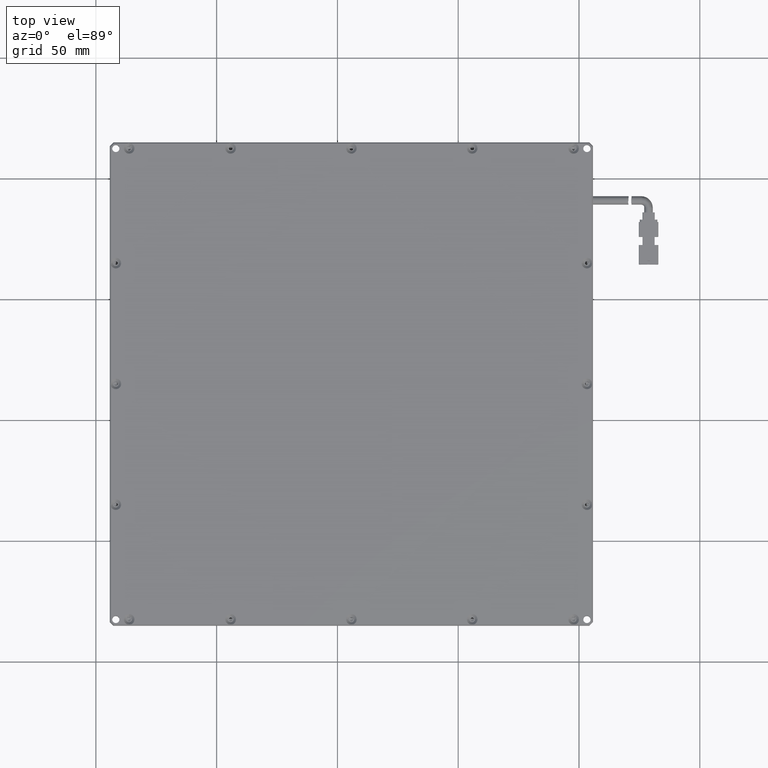
[diagram: clean part render]
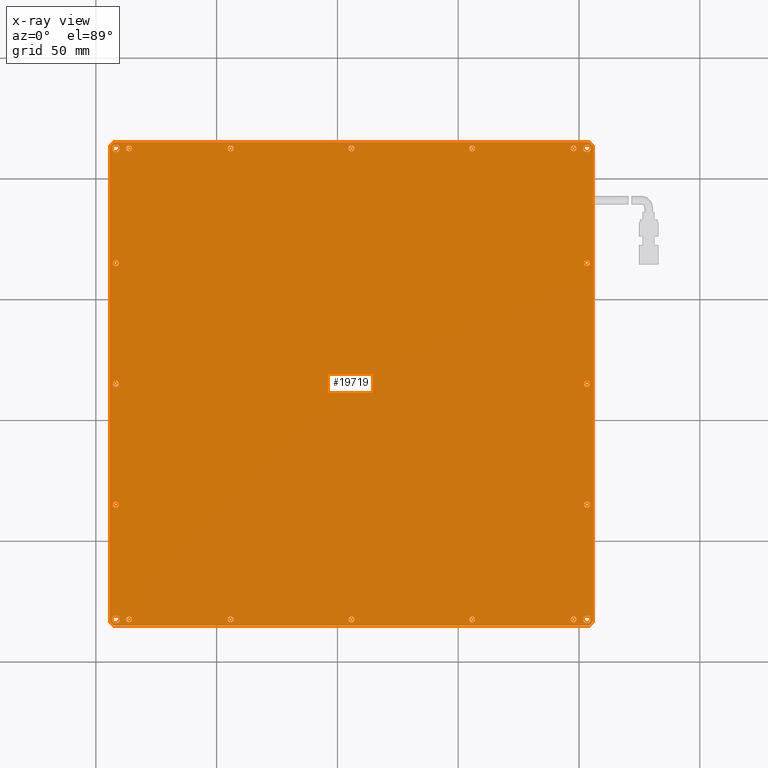
[diagram: x-ray — body ghosted, one internal face saturated and labeled with its STEP entity id]
A machine part, top view, then the same camera in x-ray: the body is ghosted and one INTERNAL B-rep face — a face not visible from any outside direction — is saturated and labeled: STEP entity #19719.
In plain terms, the highlighted planar face has unit normal (0, 0, -1).
Its self-contained STEP definition (entity closure, byte-faithful):
#57 = CARTESIAN_POINT ( 'NONE',  ( -140.0689553990610500, 112.4508215962441300, 4.499999999999999100 ) ) ;
#104 = VERTEX_POINT ( 'NONE', #4109 ) ;
#123 = EDGE_CURVE ( 'NONE', #12654, #9370, #24838, .T. ) ;
#216 = ORIENTED_EDGE ( 'NONE', *, *, #2079, .T. ) ;
#280 = ORIENTED_EDGE ( 'NONE', *, *, #4051, .T. ) ;
#282 = CIRCLE ( 'NONE', #30334, 1.200000000000006600 ) ;
#307 = ORIENTED_EDGE ( 'NONE', *, *, #10724, .T. ) ;
#379 = VERTEX_POINT ( 'NONE', #13466 ) ;
#381 = ORIENTED_EDGE ( 'NONE', *, *, #20406, .T. ) ;
#448 = VERTEX_POINT ( 'NONE', #17241 ) ;
#503 = AXIS2_PLACEMENT_3D ( 'NONE', #15626, #912, #18079 ) ;
#566 = AXIS2_PLACEMENT_3D ( 'NONE', #4054, #21210, #6492 ) ;
#837 = CARTESIAN_POINT ( 'NONE',  ( 53.28104460093896200, 112.4508215962441300, 4.499999999999999100 ) ) ;
#872 = EDGE_CURVE ( 'NONE', #5010, #25170, #13990, .T. ) ;
#912 = DIRECTION ( 'NONE',  ( -0.0000000000000000000, -0.0000000000000000000, 1.000000000000000000 ) ) ;
#938 = FACE_OUTER_BOUND ( 'NONE', #23802, .T. ) ;
#978 = CARTESIAN_POINT ( 'NONE',  ( 5.781044600938978200, -82.54917840375587400, 4.499999999999999100 ) ) ;
#1053 = ORIENTED_EDGE ( 'NONE', *, *, #123, .T. ) ;
#1138 = VERTEX_POINT ( 'NONE', #19961 ) ;
#1148 = CARTESIAN_POINT ( 'NONE',  ( -144.2189553990610300, -85.04917840375587400, 4.499999999999999100 ) ) ;
#1197 = DIRECTION ( 'NONE',  ( -1.000000000000000000, 0.0000000000000000000, -0.0000000000000000000 ) ) ;
#1214 = CIRCLE ( 'NONE', #8666, 1.199999999999978900 ) ;
#1265 = CIRCLE ( 'NONE', #19651, 1.200000000000006600 ) ;
#1272 = DIRECTION ( 'NONE',  ( 1.000000000000000000, 0.0000000000000000000, 0.0000000000000000000 ) ) ;
#1298 = ORIENTED_EDGE ( 'NONE', *, *, #24727, .T. ) ;
#1335 = EDGE_CURVE ( 'NONE', #21564, #2376, #3201, .T. ) ;
#1419 = CIRCLE ( 'NONE', #566, 1.200000000000006600 ) ;
#1420 = AXIS2_PLACEMENT_3D ( 'NONE', #8315, #25568, #10808 ) ;
#1451 = DIRECTION ( 'NONE',  ( -0.0000000000000000000, -0.0000000000000000000, 1.000000000000000000 ) ) ;
#1597 = EDGE_CURVE ( 'NONE', #31005, #379, #29025, .T. ) ;
#1669 = CARTESIAN_POINT ( 'NONE',  ( -142.7189553990610300, -85.04917840375587400, 4.499999999999999100 ) ) ;
#1733 = FACE_BOUND ( 'NONE', #14755, .T. ) ;
#1734 = CARTESIAN_POINT ( 'NONE',  ( -95.41895539906103400, 112.4508215962441300, 4.499999999999999100 ) ) ;
#1894 = CIRCLE ( 'NONE', #31878, 1.199999999999992600 ) ;
#1902 = VERTEX_POINT ( 'NONE', #57 ) ;
#1925 = AXIS2_PLACEMENT_3D ( 'NONE', #21286, #6551, #23750 ) ;
#1983 = AXIS2_PLACEMENT_3D ( 'NONE', #5351, #22607, #7840 ) ;
#2079 = EDGE_CURVE ( 'NONE', #16360, #448, #14971, .T. ) ;
#2368 = CARTESIAN_POINT ( 'NONE',  ( 5.781044600938978200, -82.54917840375587400, 4.499999999999999100 ) ) ;
#2376 = VERTEX_POINT ( 'NONE', #1669 ) ;
#2396 = LINE ( 'NONE', #14002, #27808 ) ;
#2439 = CARTESIAN_POINT ( 'NONE',  ( -44.21895539906103800, -82.54917840375587400, 4.499999999999999100 ) ) ;
#2511 = FACE_BOUND ( 'NONE', #16662, .T. ) ;
#2763 = VERTEX_POINT ( 'NONE', #19489 ) ;
#2770 = VERTEX_POINT ( 'NONE', #7240 ) ;
#2809 = CIRCLE ( 'NONE', #13114, 1.200000000000006600 ) ;
#2996 = EDGE_CURVE ( 'NONE', #9473, #14834, #1265, .T. ) ;
#3201 = LINE ( 'NONE', #1148, #9767 ) ;
#3269 = FACE_BOUND ( 'NONE', #19638, .T. ) ;
#3333 = DIRECTION ( 'NONE',  ( 1.000000000000000000, 0.0000000000000000000, 0.0000000000000000000 ) ) ;
#3343 = CARTESIAN_POINT ( 'NONE',  ( 53.28104460093896200, 112.4508215962441300, 4.499999999999999100 ) ) ;
#3453 = CARTESIAN_POINT ( 'NONE',  ( 54.28104460093896900, 114.9508215962441300, 4.499999999999999100 ) ) ;
#3471 = DIRECTION ( 'NONE',  ( 1.000000000000000000, 0.0000000000000000000, 0.0000000000000000000 ) ) ;
#3502 = CARTESIAN_POINT ( 'NONE',  ( 53.28104460093896200, 14.95082159624412700, 4.499999999999999100 ) ) ;
#3541 = EDGE_CURVE ( 'NONE', #9861, #28175, #5853, .T. ) ;
#3789 = EDGE_CURVE ( 'NONE', #28175, #21564, #2396, .T. ) ;
#3848 = CARTESIAN_POINT ( 'NONE',  ( 51.63104460093897800, -82.54917840375587400, 4.499999999999999100 ) ) ;
#4051 = EDGE_CURVE ( 'NONE', #17112, #6966, #24639, .T. ) ;
#4054 = CARTESIAN_POINT ( 'NONE',  ( 47.78104460093896200, -82.54917840375587400, 4.499999999999999100 ) ) ;
#4109 = CARTESIAN_POINT ( 'NONE',  ( -135.0189553990610400, -82.54917840375587400, 4.499999999999999100 ) ) ;
#4168 = EDGE_CURVE ( 'NONE', #22827, #1138, #16159, .T. ) ;
#4203 = AXIS2_PLACEMENT_3D ( 'NONE', #3343, #20498, #5790 ) ;
#4338 = CARTESIAN_POINT ( 'NONE',  ( -142.9189553990610500, -35.04917840375588900, 4.499999999999999100 ) ) ;
#4347 = CARTESIAN_POINT ( 'NONE',  ( -44.21895539906103800, 112.4508215962441300, 4.499999999999999100 ) ) ;
#4389 = ORIENTED_EDGE ( 'NONE', *, *, #7710, .T. ) ;
#4417 = AXIS2_PLACEMENT_3D ( 'NONE', #26599, #11801, #29149 ) ;
#4453 = DIRECTION ( 'NONE',  ( -0.0000000000000000000, -0.0000000000000000000, 1.000000000000000000 ) ) ;
#4589 = DIRECTION ( 'NONE',  ( 0.7071067811865606700, -0.7071067811865344700, 0.0000000000000000000 ) ) ;
#4753 = CARTESIAN_POINT ( 'NONE',  ( 54.48104460093897200, 14.95082159624412700, 4.499999999999999100 ) ) ;
#4760 = AXIS2_PLACEMENT_3D ( 'NONE', #26710, #11894, #29242 ) ;
#4805 = EDGE_CURVE ( 'NONE', #27008, #8969, #9570, .T. ) ;
#4817 = DIRECTION ( 'NONE',  ( 1.000000000000000000, 0.0000000000000000000, 0.0000000000000000000 ) ) ;
#4867 = DIRECTION ( 'NONE',  ( 1.000000000000000000, 0.0000000000000000000, 0.0000000000000000000 ) ) ;
#5004 = LINE ( 'NONE', #30804, #23866 ) ;
#5007 = VECTOR ( 'NONE', #28032, 1000.000000000000100 ) ;
#5010 = VERTEX_POINT ( 'NONE', #1734 ) ;
#5053 = ORIENTED_EDGE ( 'NONE', *, *, #31918, .T. ) ;
#5143 = DIRECTION ( 'NONE',  ( -0.0000000000000000000, -0.0000000000000000000, 1.000000000000000000 ) ) ;
#5351 = CARTESIAN_POINT ( 'NONE',  ( 53.28104460093896200, -35.04917840375588900, 4.499999999999999100 ) ) ;
#5559 = CIRCLE ( 'NONE', #6991, 1.200000000000006600 ) ;
#5597 = EDGE_CURVE ( 'NONE', #8969, #27008, #24317, .T. ) ;
#5705 = VERTEX_POINT ( 'NONE', #29993 ) ;
#5790 = DIRECTION ( 'NONE',  ( 1.000000000000000000, 0.0000000000000000000, 0.0000000000000000000 ) ) ;
#5810 = EDGE_CURVE ( 'NONE', #29102, #25829, #2809, .T. ) ;
#5853 = LINE ( 'NONE', #12206, #18936 ) ;
#5875 = ORIENTED_EDGE ( 'NONE', *, *, #18386, .T. ) ;
#5961 = DIRECTION ( 'NONE',  ( 1.000000000000000000, 0.0000000000000000000, 0.0000000000000000000 ) ) ;
#6159 = AXIS2_PLACEMENT_3D ( 'NONE', #10441, #27685, #12891 ) ;
#6190 = AXIS2_PLACEMENT_3D ( 'NONE', #19166, #4453, #21658 ) ;
#6275 = VERTEX_POINT ( 'NONE', #4753 ) ;
#6492 = DIRECTION ( 'NONE',  ( 1.000000000000000000, 0.0000000000000000000, 0.0000000000000000000 ) ) ;
#6524 = VERTEX_POINT ( 'NONE', #9596 ) ;
#6530 = AXIS2_PLACEMENT_3D ( 'NONE', #30730, #15939, #1197 ) ;
#6551 = DIRECTION ( 'NONE',  ( -0.0000000000000000000, -0.0000000000000000000, 1.000000000000000000 ) ) ;
#6591 = CARTESIAN_POINT ( 'NONE',  ( -144.2189553990610300, -83.54917840375587400, 4.499999999999998200 ) ) ;
#6657 = CARTESIAN_POINT ( 'NONE',  ( -136.2189553990610300, -82.54917840375587400, 4.499999999999999100 ) ) ;
#6764 = DIRECTION ( 'NONE',  ( -0.0000000000000000000, -0.0000000000000000000, 1.000000000000000000 ) ) ;
#6819 = DIRECTION ( 'NONE',  ( -0.0000000000000000000, -0.0000000000000000000, 1.000000000000000000 ) ) ;
#6824 = DIRECTION ( 'NONE',  ( 1.000000000000000000, 0.0000000000000000000, 0.0000000000000000000 ) ) ;
#6966 = VERTEX_POINT ( 'NONE', #3453 ) ;
#6991 = AXIS2_PLACEMENT_3D ( 'NONE', #6657, #23836, #9119 ) ;
#7014 = EDGE_CURVE ( 'NONE', #13670, #6275, #29773, .T. ) ;
#7028 = AXIS2_PLACEMENT_3D ( 'NONE', #14275, #31541, #16765 ) ;
#7132 = FACE_BOUND ( 'NONE', #8242, .T. ) ;
#7134 = CARTESIAN_POINT ( 'NONE',  ( 5.781044600938978200, 112.4508215962441300, 4.499999999999999100 ) ) ;
#7187 = ORIENTED_EDGE ( 'NONE', *, *, #9882, .T. ) ;
#7240 = CARTESIAN_POINT ( 'NONE',  ( -43.01895539906104900, 112.4508215962441300, 4.499999999999999100 ) ) ;
#7253 = CARTESIAN_POINT ( 'NONE',  ( -95.41895539906103400, -82.54917840375587400, 4.499999999999999100 ) ) ;
#7275 = EDGE_LOOP ( 'NONE', ( #21694, #16369 ) ) ;
#7488 = FACE_BOUND ( 'NONE', #24059, .T. ) ;
#7544 = EDGE_CURVE ( 'NONE', #21777, #1902, #18432, .T. ) ;
#7564 = AXIS2_PLACEMENT_3D ( 'NONE', #21533, #6819, #24019 ) ;
#7648 = DIRECTION ( 'NONE',  ( -0.0000000000000000000, -0.0000000000000000000, 1.000000000000000000 ) ) ;
#7695 = AXIS2_PLACEMENT_3D ( 'NONE', #11475, #13846, #23762 ) ;
#7710 = EDGE_CURVE ( 'NONE', #24604, #28627, #19955, .T. ) ;
#7714 = ORIENTED_EDGE ( 'NONE', *, *, #3541, .T. ) ;
#7716 = CARTESIAN_POINT ( 'NONE',  ( 54.28104460093896900, -85.04917840375587400, 4.499999999999999100 ) ) ;
#7840 = DIRECTION ( 'NONE',  ( 1.000000000000000000, 0.0000000000000000000, 0.0000000000000000000 ) ) ;
#7895 = EDGE_CURVE ( 'NONE', #8478, #20554, #14911, .T. ) ;
#7896 = CARTESIAN_POINT ( 'NONE',  ( 54.48104460093894400, -35.04917840375588900, 4.499999999999999100 ) ) ;
#7916 = ORIENTED_EDGE ( 'NONE', *, *, #7544, .T. ) ;
#7944 = EDGE_CURVE ( 'NONE', #17288, #2763, #8771, .T. ) ;
#7945 = CARTESIAN_POINT ( 'NONE',  ( -140.0689553990610500, -82.54917840375587400, 4.499999999999999100 ) ) ;
#8148 = CIRCLE ( 'NONE', #6190, 1.200000000000006600 ) ;
#8226 = FACE_BOUND ( 'NONE', #28544, .T. ) ;
#8242 = EDGE_LOOP ( 'NONE', ( #7187, #21660 ) ) ;
#8295 = ORIENTED_EDGE ( 'NONE', *, *, #23136, .T. ) ;
#8315 = CARTESIAN_POINT ( 'NONE',  ( 53.28104460093896200, 14.95082159624412700, 4.499999999999999100 ) ) ;
#8353 = DIRECTION ( 'NONE',  ( -0.0000000000000000000, -0.0000000000000000000, 1.000000000000000000 ) ) ;
#8357 = EDGE_LOOP ( 'NONE', ( #5875, #10504 ) ) ;
#8441 = AXIS2_PLACEMENT_3D ( 'NONE', #25297, #10575, #27827 ) ;
#8478 = VERTEX_POINT ( 'NONE', #27862 ) ;
#8585 = CARTESIAN_POINT ( 'NONE',  ( -143.3689553990610400, 112.4508215962441300, 4.499999999999999100 ) ) ;
#8665 = CIRCLE ( 'NONE', #1983, 1.199999999999978900 ) ;
#8666 = AXIS2_PLACEMENT_3D ( 'NONE', #25871, #11094, #28402 ) ;
#8687 = CIRCLE ( 'NONE', #24887, 1.649999999999984800 ) ;
#8752 = CARTESIAN_POINT ( 'NONE',  ( 52.08104460093898800, 64.95082159624411100, 4.499999999999999100 ) ) ;
#8771 = CIRCLE ( 'NONE', #11732, 1.199999999999978900 ) ;
#8778 = CARTESIAN_POINT ( 'NONE',  ( -45.41895539906103400, -82.54917840375587400, 4.499999999999999100 ) ) ;
#8969 = VERTEX_POINT ( 'NONE', #29794 ) ;
#9028 = FACE_BOUND ( 'NONE', #13115, .T. ) ;
#9047 = CARTESIAN_POINT ( 'NONE',  ( -144.2189553990610300, 114.9508215962441300, 4.499999999999999100 ) ) ;
#9119 = DIRECTION ( 'NONE',  ( 1.000000000000000000, 0.0000000000000000000, 0.0000000000000000000 ) ) ;
#9370 = VERTEX_POINT ( 'NONE', #31245 ) ;
#9473 = VERTEX_POINT ( 'NONE', #26602 ) ;
#9570 = CIRCLE ( 'NONE', #21351, 1.199999999999992600 ) ;
#9596 = CARTESIAN_POINT ( 'NONE',  ( 54.48104460093894400, 64.95082159624411100, 4.499999999999999100 ) ) ;
#9611 = ORIENTED_EDGE ( 'NONE', *, *, #18439, .T. ) ;
#9615 = DIRECTION ( 'NONE',  ( 1.000000000000000000, 0.0000000000000000000, 0.0000000000000000000 ) ) ;
#9653 = VECTOR ( 'NONE', #11482, 1000.000000000000000 ) ;
#9767 = VECTOR ( 'NONE', #15892, 1000.000000000000000 ) ;
#9826 = FACE_BOUND ( 'NONE', #19625, .T. ) ;
#9861 = VERTEX_POINT ( 'NONE', #25762 ) ;
#9882 = EDGE_CURVE ( 'NONE', #6524, #17485, #1214, .T. ) ;
#10079 = CARTESIAN_POINT ( 'NONE',  ( -45.41895539906103400, 112.4508215962441300, 4.499999999999999100 ) ) ;
#10125 = CARTESIAN_POINT ( 'NONE',  ( -94.21895539906103100, -82.54917840375587400, 4.499999999999999100 ) ) ;
#10157 = EDGE_CURVE ( 'NONE', #1138, #17112, #11536, .T. ) ;
#10252 = ORIENTED_EDGE ( 'NONE', *, *, #18547, .T. ) ;
#10352 = AXIS2_PLACEMENT_3D ( 'NONE', #7134, #24320, #9615 ) ;
#10372 = DIRECTION ( 'NONE',  ( -0.0000000000000000000, -0.0000000000000000000, 1.000000000000000000 ) ) ;
#10383 = VERTEX_POINT ( 'NONE', #31457 ) ;
#10404 = DIRECTION ( 'NONE',  ( -0.0000000000000000000, -0.0000000000000000000, 1.000000000000000000 ) ) ;
#10441 = CARTESIAN_POINT ( 'NONE',  ( 47.78104460093896200, 112.4508215962441300, 4.499999999999999100 ) ) ;
#10504 = ORIENTED_EDGE ( 'NONE', *, *, #26237, .T. ) ;
#10575 = DIRECTION ( 'NONE',  ( -0.0000000000000000000, -0.0000000000000000000, 1.000000000000000000 ) ) ;
#10610 = CARTESIAN_POINT ( 'NONE',  ( 53.28104460093896200, -35.04917840375588900, 4.499999999999999100 ) ) ;
#10650 = EDGE_LOOP ( 'NONE', ( #22646, #20669 ) ) ;
#10677 = CARTESIAN_POINT ( 'NONE',  ( -136.2189553990610300, -82.54917840375587400, 4.499999999999999100 ) ) ;
#10702 = CARTESIAN_POINT ( 'NONE',  ( -93.01895539906101400, 112.4508215962441300, 4.499999999999999100 ) ) ;
#10724 = EDGE_CURVE ( 'NONE', #14265, #12972, #21468, .T. ) ;
#10808 = DIRECTION ( 'NONE',  ( 1.000000000000000000, 0.0000000000000000000, 0.0000000000000000000 ) ) ;
#10848 = EDGE_LOOP ( 'NONE', ( #1053, #12214 ) ) ;
#10893 = VERTEX_POINT ( 'NONE', #7253 ) ;
#11094 = DIRECTION ( 'NONE',  ( -0.0000000000000000000, -0.0000000000000000000, 1.000000000000000000 ) ) ;
#11393 = AXIS2_PLACEMENT_3D ( 'NONE', #837, #18010, #3333 ) ;
#11455 = CIRCLE ( 'NONE', #1925, 1.200000000000006600 ) ;
#11475 = CARTESIAN_POINT ( 'NONE',  ( -141.7189553990610300, -82.54917840375587400, 4.499999999999999100 ) ) ;
#11482 = DIRECTION ( 'NONE',  ( 0.0000000000000000000, 1.000000000000000000, 0.0000000000000000000 ) ) ;
#11536 = LINE ( 'NONE', #25280, #5007 ) ;
#11546 = CIRCLE ( 'NONE', #25615, 1.200000000000006600 ) ;
#11547 = EDGE_CURVE ( 'NONE', #18770, #10893, #13252, .T. ) ;
#11638 = CARTESIAN_POINT ( 'NONE',  ( 48.98104460093896500, 112.4508215962441300, 4.499999999999999100 ) ) ;
#11732 = AXIS2_PLACEMENT_3D ( 'NONE', #10610, #27883, #13063 ) ;
#11801 = DIRECTION ( 'NONE',  ( -0.0000000000000000000, -0.0000000000000000000, 1.000000000000000000 ) ) ;
#11894 = DIRECTION ( 'NONE',  ( -0.0000000000000000000, -0.0000000000000000000, 1.000000000000000000 ) ) ;
#12180 = EDGE_CURVE ( 'NONE', #1902, #21777, #16702, .T. ) ;
#12206 = CARTESIAN_POINT ( 'NONE',  ( 55.78104460093896900, 114.9508215962441300, 4.499999999999999100 ) ) ;
#12214 = ORIENTED_EDGE ( 'NONE', *, *, #20840, .T. ) ;
#12358 = CARTESIAN_POINT ( 'NONE',  ( -142.9189553990610500, 64.95082159624411100, 4.499999999999999100 ) ) ;
#12362 = AXIS2_PLACEMENT_3D ( 'NONE', #27434, #12634, #29946 ) ;
#12397 = CIRCLE ( 'NONE', #26112, 1.649999999999984800 ) ;
#12412 = ORIENTED_EDGE ( 'NONE', *, *, #7944, .T. ) ;
#12548 = DIRECTION ( 'NONE',  ( 1.000000000000000000, 0.0000000000000000000, 0.0000000000000000000 ) ) ;
#12634 = DIRECTION ( 'NONE',  ( -0.0000000000000000000, -0.0000000000000000000, 1.000000000000000000 ) ) ;
#12645 = CARTESIAN_POINT ( 'NONE',  ( -141.7189553990610300, -35.04917840375588900, 4.499999999999999100 ) ) ;
#12654 = VERTEX_POINT ( 'NONE', #7945 ) ;
#12708 = ORIENTED_EDGE ( 'NONE', *, *, #4805, .T. ) ;
#12722 = AXIS2_PLACEMENT_3D ( 'NONE', #3502, #20636, #5961 ) ;
#12891 = DIRECTION ( 'NONE',  ( 1.000000000000000000, 0.0000000000000000000, 0.0000000000000000000 ) ) ;
#12972 = VERTEX_POINT ( 'NONE', #14159 ) ;
#13063 = DIRECTION ( 'NONE',  ( 1.000000000000000000, 0.0000000000000000000, 0.0000000000000000000 ) ) ;
#13114 = AXIS2_PLACEMENT_3D ( 'NONE', #28034, #13236, #30507 ) ;
#13115 = EDGE_LOOP ( 'NONE', ( #29556, #7916 ) ) ;
#13148 = DIRECTION ( 'NONE',  ( 1.000000000000000000, 0.0000000000000000000, 0.0000000000000000000 ) ) ;
#13236 = DIRECTION ( 'NONE',  ( -0.0000000000000000000, -0.0000000000000000000, 1.000000000000000000 ) ) ;
#13252 = CIRCLE ( 'NONE', #16145, 1.200000000000006600 ) ;
#13288 = DIRECTION ( 'NONE',  ( -0.0000000000000000000, -0.0000000000000000000, 1.000000000000000000 ) ) ;
#13326 = DIRECTION ( 'NONE',  ( -0.0000000000000000000, -0.0000000000000000000, 1.000000000000000000 ) ) ;
#13339 = PLANE ( 'NONE',  #6530 ) ;
#13381 = LINE ( 'NONE', #24379, #26530 ) ;
#13466 = CARTESIAN_POINT ( 'NONE',  ( 54.93104460093894700, -82.54917840375587400, 4.499999999999999100 ) ) ;
#13528 = CARTESIAN_POINT ( 'NONE',  ( -141.7189553990610300, 112.4508215962441300, 4.499999999999999100 ) ) ;
#13547 = CARTESIAN_POINT ( 'NONE',  ( 46.58104460093895200, -82.54917840375587400, 4.499999999999999100 ) ) ;
#13595 = CARTESIAN_POINT ( 'NONE',  ( 51.63104460093897800, 112.4508215962441300, 4.499999999999999100 ) ) ;
#13670 = VERTEX_POINT ( 'NONE', #28597 ) ;
#13846 = DIRECTION ( 'NONE',  ( -0.0000000000000000000, -0.0000000000000000000, 1.000000000000000000 ) ) ;
#13921 = CARTESIAN_POINT ( 'NONE',  ( -135.0189553990610400, 112.4508215962441300, 4.499999999999999100 ) ) ;
#13929 = AXIS2_PLACEMENT_3D ( 'NONE', #21465, #6764, #23947 ) ;
#13990 = CIRCLE ( 'NONE', #13929, 1.200000000000006600 ) ;
#14001 = FACE_BOUND ( 'NONE', #28967, .T. ) ;
#14002 = CARTESIAN_POINT ( 'NONE',  ( 55.78104460093896900, -83.54917840375581800, 4.499999999999999100 ) ) ;
#14159 = CARTESIAN_POINT ( 'NONE',  ( -142.9189553990610500, 14.95082159624412700, 4.499999999999999100 ) ) ;
#14179 = ORIENTED_EDGE ( 'NONE', *, *, #15716, .T. ) ;
#14216 = EDGE_LOOP ( 'NONE', ( #24483, #22598 ) ) ;
#14265 = VERTEX_POINT ( 'NONE', #26574 ) ;
#14269 = CARTESIAN_POINT ( 'NONE',  ( 46.58104460093895200, 112.4508215962441300, 4.499999999999999100 ) ) ;
#14275 = CARTESIAN_POINT ( 'NONE',  ( -141.7189553990610300, 14.95082159624412700, 4.499999999999999100 ) ) ;
#14492 = ORIENTED_EDGE ( 'NONE', *, *, #10157, .T. ) ;
#14755 = EDGE_LOOP ( 'NONE', ( #14179, #18026 ) ) ;
#14767 = EDGE_LOOP ( 'NONE', ( #307, #27756 ) ) ;
#14778 = FACE_BOUND ( 'NONE', #10650, .T. ) ;
#14834 = VERTEX_POINT ( 'NONE', #17565 ) ;
#14911 = CIRCLE ( 'NONE', #12362, 1.200000000000006600 ) ;
#14912 = CIRCLE ( 'NONE', #18986, 1.200000000000006600 ) ;
#14971 = CIRCLE ( 'NONE', #27828, 1.200000000000006600 ) ;
#15110 = CARTESIAN_POINT ( 'NONE',  ( 4.581044600938971800, 112.4508215962441300, 4.499999999999999100 ) ) ;
#15127 = DIRECTION ( 'NONE',  ( 1.000000000000000000, 0.0000000000000000000, 0.0000000000000000000 ) ) ;
#15159 = DIRECTION ( 'NONE',  ( 1.000000000000000000, -0.0000000000000000000, 0.0000000000000000000 ) ) ;
#15194 = ORIENTED_EDGE ( 'NONE', *, *, #22917, .T. ) ;
#15500 = CARTESIAN_POINT ( 'NONE',  ( 55.78104460093896900, -83.54917840375581800, 4.499999999999999100 ) ) ;
#15539 = FACE_BOUND ( 'NONE', #27518, .T. ) ;
#15626 = CARTESIAN_POINT ( 'NONE',  ( -141.7189553990610300, 112.4508215962441300, 4.499999999999999100 ) ) ;
#15716 = EDGE_CURVE ( 'NONE', #25829, #29102, #15802, .T. ) ;
#15802 = CIRCLE ( 'NONE', #6159, 1.200000000000006600 ) ;
#15892 = DIRECTION ( 'NONE',  ( -1.000000000000000000, 0.0000000000000000000, -0.0000000000000000000 ) ) ;
#15939 = DIRECTION ( 'NONE',  ( 0.0000000000000000000, 0.0000000000000000000, -1.000000000000000000 ) ) ;
#15994 = EDGE_CURVE ( 'NONE', #2376, #22827, #5004, .T. ) ;
#15997 = DIRECTION ( 'NONE',  ( -0.0000000000000000000, -0.0000000000000000000, 1.000000000000000000 ) ) ;
#16025 = DIRECTION ( 'NONE',  ( 1.000000000000000000, 0.0000000000000000000, 0.0000000000000000000 ) ) ;
#16145 = AXIS2_PLACEMENT_3D ( 'NONE', #10125, #27318, #12548 ) ;
#16149 = EDGE_CURVE ( 'NONE', #12972, #14265, #16917, .T. ) ;
#16156 = EDGE_LOOP ( 'NONE', ( #381, #29725 ) ) ;
#16159 = LINE ( 'NONE', #9047, #9653 ) ;
#16176 = CARTESIAN_POINT ( 'NONE',  ( 53.28104460093896200, -82.54917840375587400, 4.499999999999999100 ) ) ;
#16177 = EDGE_LOOP ( 'NONE', ( #27779, #21232 ) ) ;
#16281 = EDGE_CURVE ( 'NONE', #14834, #9473, #30429, .T. ) ;
#16360 = VERTEX_POINT ( 'NONE', #15110 ) ;
#16369 = ORIENTED_EDGE ( 'NONE', *, *, #872, .T. ) ;
#16505 = EDGE_CURVE ( 'NONE', #28627, #24604, #14912, .T. ) ;
#16601 = ORIENTED_EDGE ( 'NONE', *, *, #5597, .T. ) ;
#16625 = VERTEX_POINT ( 'NONE', #13595 ) ;
#16662 = EDGE_LOOP ( 'NONE', ( #10252, #8295 ) ) ;
#16702 = CIRCLE ( 'NONE', #503, 1.649999999999984800 ) ;
#16765 = DIRECTION ( 'NONE',  ( 1.000000000000000000, 0.0000000000000000000, 0.0000000000000000000 ) ) ;
#16917 = CIRCLE ( 'NONE', #7028, 1.200000000000006600 ) ;
#17112 = VERTEX_POINT ( 'NONE', #25185 ) ;
#17207 = ORIENTED_EDGE ( 'NONE', *, *, #27165, .T. ) ;
#17241 = CARTESIAN_POINT ( 'NONE',  ( 6.981044600938984600, 112.4508215962441300, 4.499999999999999100 ) ) ;
#17288 = VERTEX_POINT ( 'NONE', #7896 ) ;
#17485 = VERTEX_POINT ( 'NONE', #8752 ) ;
#17506 = CARTESIAN_POINT ( 'NONE',  ( -144.2189553990610300, 114.9508215962441300, 4.499999999999999100 ) ) ;
#17555 = VERTEX_POINT ( 'NONE', #23813 ) ;
#17565 = CARTESIAN_POINT ( 'NONE',  ( 6.981044600938984600, -82.54917840375587400, 4.499999999999999100 ) ) ;
#17593 = ORIENTED_EDGE ( 'NONE', *, *, #4168, .T. ) ;
#18010 = DIRECTION ( 'NONE',  ( -0.0000000000000000000, -0.0000000000000000000, 1.000000000000000000 ) ) ;
#18026 = ORIENTED_EDGE ( 'NONE', *, *, #5810, .T. ) ;
#18079 = DIRECTION ( 'NONE',  ( 1.000000000000000000, 0.0000000000000000000, 0.0000000000000000000 ) ) ;
#18162 = DIRECTION ( 'NONE',  ( -0.0000000000000000000, -0.0000000000000000000, 1.000000000000000000 ) ) ;
#18168 = EDGE_CURVE ( 'NONE', #25170, #5010, #26206, .T. ) ;
#18386 = EDGE_CURVE ( 'NONE', #5705, #30145, #23825, .T. ) ;
#18390 = CIRCLE ( 'NONE', #11393, 1.649999999999984800 ) ;
#18425 = ORIENTED_EDGE ( 'NONE', *, *, #16281, .T. ) ;
#18432 = CIRCLE ( 'NONE', #20773, 1.649999999999984800 ) ;
#18439 = EDGE_CURVE ( 'NONE', #25525, #2770, #1894, .T. ) ;
#18524 = ORIENTED_EDGE ( 'NONE', *, *, #27454, .T. ) ;
#18547 = EDGE_CURVE ( 'NONE', #10383, #16625, #18390, .T. ) ;
#18647 = DIRECTION ( 'NONE',  ( 1.000000000000000000, 0.0000000000000000000, 0.0000000000000000000 ) ) ;
#18770 = VERTEX_POINT ( 'NONE', #19112 ) ;
#18793 = ORIENTED_EDGE ( 'NONE', *, *, #27668, .T. ) ;
#18936 = VECTOR ( 'NONE', #26988, 1000.000000000000000 ) ;
#18986 = AXIS2_PLACEMENT_3D ( 'NONE', #28085, #13288, #30554 ) ;
#19024 = CIRCLE ( 'NONE', #8441, 1.199999999999978900 ) ;
#19112 = CARTESIAN_POINT ( 'NONE',  ( -93.01895539906101400, -82.54917840375587400, 4.499999999999999100 ) ) ;
#19166 = CARTESIAN_POINT ( 'NONE',  ( 47.78104460093896200, -82.54917840375587400, 4.499999999999999100 ) ) ;
#19489 = CARTESIAN_POINT ( 'NONE',  ( 52.08104460093898800, -35.04917840375588900, 4.499999999999999100 ) ) ;
#19540 = DIRECTION ( 'NONE',  ( -0.0000000000000000000, -0.0000000000000000000, 1.000000000000000000 ) ) ;
#19594 = DIRECTION ( 'NONE',  ( -0.0000000000000000000, -0.0000000000000000000, 1.000000000000000000 ) ) ;
#19625 = EDGE_LOOP ( 'NONE', ( #12412, #1298 ) ) ;
#19638 = EDGE_LOOP ( 'NONE', ( #4389, #27445 ) ) ;
#19651 = AXIS2_PLACEMENT_3D ( 'NONE', #978, #18162, #3471 ) ;
#19719 = ADVANCED_FACE ( 'NONE', ( #22892, #29507, #7132, #9826, #3269, #28751, #22132, #15539, #9028, #2511, #27928, #21347, #14778, #8226, #1733, #27131, #20524, #14001, #7488, #938, #26379 ), #13339, .T. ) ;
#19856 = CARTESIAN_POINT ( 'NONE',  ( -94.21895539906103100, -82.54917840375587400, 4.499999999999999100 ) ) ;
#19955 = CIRCLE ( 'NONE', #4760, 1.200000000000006600 ) ;
#19961 = CARTESIAN_POINT ( 'NONE',  ( -144.2189553990610300, 113.4508215962441300, 4.499999999999999100 ) ) ;
#20406 = EDGE_CURVE ( 'NONE', #6275, #13670, #22034, .T. ) ;
#20498 = DIRECTION ( 'NONE',  ( -0.0000000000000000000, -0.0000000000000000000, 1.000000000000000000 ) ) ;
#20524 = FACE_BOUND ( 'NONE', #16177, .T. ) ;
#20554 = VERTEX_POINT ( 'NONE', #13921 ) ;
#20636 = DIRECTION ( 'NONE',  ( -0.0000000000000000000, -0.0000000000000000000, 1.000000000000000000 ) ) ;
#20669 = ORIENTED_EDGE ( 'NONE', *, *, #7895, .T. ) ;
#20773 = AXIS2_PLACEMENT_3D ( 'NONE', #13528, #30814, #16025 ) ;
#20840 = EDGE_CURVE ( 'NONE', #9370, #12654, #8687, .T. ) ;
#20944 = AXIS2_PLACEMENT_3D ( 'NONE', #2439, #19594, #4867 ) ;
#21019 = CIRCLE ( 'NONE', #24109, 1.199999999999992600 ) ;
#21130 = VERTEX_POINT ( 'NONE', #13547 ) ;
#21210 = DIRECTION ( 'NONE',  ( -0.0000000000000000000, -0.0000000000000000000, 1.000000000000000000 ) ) ;
#21232 = ORIENTED_EDGE ( 'NONE', *, *, #31086, .T. ) ;
#21286 = CARTESIAN_POINT ( 'NONE',  ( -136.2189553990610300, 112.4508215962441300, 4.499999999999999100 ) ) ;
#21347 = FACE_BOUND ( 'NONE', #10848, .T. ) ;
#21351 = AXIS2_PLACEMENT_3D ( 'NONE', #23113, #8353, #25609 ) ;
#21444 = DIRECTION ( 'NONE',  ( -0.7071067811865344700, -0.7071067811865606700, 0.0000000000000000000 ) ) ;
#21465 = CARTESIAN_POINT ( 'NONE',  ( -94.21895539906103100, 112.4508215962441300, 4.499999999999999100 ) ) ;
#21468 = CIRCLE ( 'NONE', #29801, 1.200000000000006600 ) ;
#21533 = CARTESIAN_POINT ( 'NONE',  ( 53.28104460093896200, -82.54917840375587400, 4.499999999999999100 ) ) ;
#21543 = DIRECTION ( 'NONE',  ( -0.0000000000000000000, -0.0000000000000000000, 1.000000000000000000 ) ) ;
#21564 = VERTEX_POINT ( 'NONE', #7716 ) ;
#21658 = DIRECTION ( 'NONE',  ( 1.000000000000000000, 0.0000000000000000000, 0.0000000000000000000 ) ) ;
#21660 = ORIENTED_EDGE ( 'NONE', *, *, #28141, .T. ) ;
#21694 = ORIENTED_EDGE ( 'NONE', *, *, #18168, .T. ) ;
#21767 = CARTESIAN_POINT ( 'NONE',  ( 48.98104460093896500, -82.54917840375587400, 4.499999999999999100 ) ) ;
#21777 = VERTEX_POINT ( 'NONE', #8585 ) ;
#21928 = AXIS2_PLACEMENT_3D ( 'NONE', #12645, #29953, #15127 ) ;
#21960 = CARTESIAN_POINT ( 'NONE',  ( -140.5189553990610400, 64.95082159624411100, 4.499999999999999100 ) ) ;
#22034 = CIRCLE ( 'NONE', #1420, 1.200000000000006600 ) ;
#22132 = FACE_BOUND ( 'NONE', #7275, .T. ) ;
#22259 = ORIENTED_EDGE ( 'NONE', *, *, #1335, .T. ) ;
#22364 = CIRCLE ( 'NONE', #30900, 1.200000000000006600 ) ;
#22372 = DIRECTION ( 'NONE',  ( 1.000000000000000000, 0.0000000000000000000, 0.0000000000000000000 ) ) ;
#22445 = CARTESIAN_POINT ( 'NONE',  ( -141.7189553990610300, -82.54917840375587400, 4.499999999999999100 ) ) ;
#22598 = ORIENTED_EDGE ( 'NONE', *, *, #1597, .T. ) ;
#22607 = DIRECTION ( 'NONE',  ( -0.0000000000000000000, -0.0000000000000000000, 1.000000000000000000 ) ) ;
#22646 = ORIENTED_EDGE ( 'NONE', *, *, #23378, .T. ) ;
#22756 = ORIENTED_EDGE ( 'NONE', *, *, #30443, .T. ) ;
#22827 = VERTEX_POINT ( 'NONE', #6591 ) ;
#22892 = FACE_BOUND ( 'NONE', #26063, .T. ) ;
#22917 = EDGE_CURVE ( 'NONE', #448, #16360, #23083, .T. ) ;
#23083 = CIRCLE ( 'NONE', #10352, 1.200000000000006600 ) ;
#23113 = CARTESIAN_POINT ( 'NONE',  ( -44.21895539906103800, -82.54917840375587400, 4.499999999999999100 ) ) ;
#23136 = EDGE_CURVE ( 'NONE', #16625, #10383, #31553, .T. ) ;
#23378 = EDGE_CURVE ( 'NONE', #20554, #8478, #11455, .T. ) ;
#23572 = DIRECTION ( 'NONE',  ( -0.7071067811865474600, 0.7071067811865474600, 0.0000000000000000000 ) ) ;
#23750 = DIRECTION ( 'NONE',  ( 1.000000000000000000, 0.0000000000000000000, 0.0000000000000000000 ) ) ;
#23762 = DIRECTION ( 'NONE',  ( 1.000000000000000000, 0.0000000000000000000, 0.0000000000000000000 ) ) ;
#23802 = EDGE_LOOP ( 'NONE', ( #7714, #30750, #22259, #26124, #17593, #14492, #280, #17207 ) ) ;
#23813 = CARTESIAN_POINT ( 'NONE',  ( -137.4189553990610500, -82.54917840375587400, 4.499999999999999100 ) ) ;
#23825 = CIRCLE ( 'NONE', #21928, 1.200000000000006600 ) ;
#23836 = DIRECTION ( 'NONE',  ( -0.0000000000000000000, -0.0000000000000000000, 1.000000000000000000 ) ) ;
#23866 = VECTOR ( 'NONE', #23572, 1000.000000000000100 ) ;
#23947 = DIRECTION ( 'NONE',  ( 1.000000000000000000, 0.0000000000000000000, 0.0000000000000000000 ) ) ;
#24019 = DIRECTION ( 'NONE',  ( 1.000000000000000000, 0.0000000000000000000, 0.0000000000000000000 ) ) ;
#24059 = EDGE_LOOP ( 'NONE', ( #18524, #22756 ) ) ;
#24109 = AXIS2_PLACEMENT_3D ( 'NONE', #4347, #21543, #6824 ) ;
#24317 = CIRCLE ( 'NONE', #20944, 1.199999999999992600 ) ;
#24320 = DIRECTION ( 'NONE',  ( -0.0000000000000000000, -0.0000000000000000000, 1.000000000000000000 ) ) ;
#24379 = CARTESIAN_POINT ( 'NONE',  ( 54.28104460093894100, 114.9508215962441300, 4.499999999999999100 ) ) ;
#24483 = ORIENTED_EDGE ( 'NONE', *, *, #25726, .T. ) ;
#24604 = VERTEX_POINT ( 'NONE', #21960 ) ;
#24639 = LINE ( 'NONE', #17506, #31240 ) ;
#24727 = EDGE_CURVE ( 'NONE', #2763, #17288, #8665, .T. ) ;
#24838 = CIRCLE ( 'NONE', #7695, 1.649999999999984800 ) ;
#24859 = DIRECTION ( 'NONE',  ( 1.000000000000000000, 0.0000000000000000000, 0.0000000000000000000 ) ) ;
#24887 = AXIS2_PLACEMENT_3D ( 'NONE', #22445, #7648, #24859 ) ;
#25096 = CARTESIAN_POINT ( 'NONE',  ( 5.781044600938978200, 112.4508215962441300, 4.499999999999999100 ) ) ;
#25134 = CARTESIAN_POINT ( 'NONE',  ( -44.21895539906103800, 112.4508215962441300, 4.499999999999999100 ) ) ;
#25170 = VERTEX_POINT ( 'NONE', #10702 ) ;
#25185 = CARTESIAN_POINT ( 'NONE',  ( -142.7189553990610600, 114.9508215962441300, 4.499999999999998200 ) ) ;
#25280 = CARTESIAN_POINT ( 'NONE',  ( -144.2189553990610600, 113.4508215962441300, 4.499999999999999100 ) ) ;
#25297 = CARTESIAN_POINT ( 'NONE',  ( 53.28104460093896200, 64.95082159624411100, 4.499999999999999100 ) ) ;
#25525 = VERTEX_POINT ( 'NONE', #10079 ) ;
#25568 = DIRECTION ( 'NONE',  ( -0.0000000000000000000, -0.0000000000000000000, 1.000000000000000000 ) ) ;
#25609 = DIRECTION ( 'NONE',  ( 1.000000000000000000, 0.0000000000000000000, 0.0000000000000000000 ) ) ;
#25615 = AXIS2_PLACEMENT_3D ( 'NONE', #19856, #5143, #22372 ) ;
#25726 = EDGE_CURVE ( 'NONE', #379, #31005, #12397, .T. ) ;
#25762 = CARTESIAN_POINT ( 'NONE',  ( 55.78104460093896900, 113.4508215962441500, 4.499999999999998200 ) ) ;
#25829 = VERTEX_POINT ( 'NONE', #11638 ) ;
#25868 = ORIENTED_EDGE ( 'NONE', *, *, #11547, .T. ) ;
#25871 = CARTESIAN_POINT ( 'NONE',  ( 53.28104460093896200, 64.95082159624411100, 4.499999999999999100 ) ) ;
#26063 = EDGE_LOOP ( 'NONE', ( #25868, #5053 ) ) ;
#26112 = AXIS2_PLACEMENT_3D ( 'NONE', #16176, #1451, #18647 ) ;
#26124 = ORIENTED_EDGE ( 'NONE', *, *, #15994, .T. ) ;
#26206 = CIRCLE ( 'NONE', #4417, 1.200000000000006600 ) ;
#26237 = EDGE_CURVE ( 'NONE', #30145, #5705, #22364, .T. ) ;
#26379 = FACE_BOUND ( 'NONE', #14767, .T. ) ;
#26530 = VECTOR ( 'NONE', #4589, 1000.000000000000000 ) ;
#26574 = CARTESIAN_POINT ( 'NONE',  ( -140.5189553990610400, 14.95082159624412700, 4.499999999999999100 ) ) ;
#26599 = CARTESIAN_POINT ( 'NONE',  ( -94.21895539906103100, 112.4508215962441300, 4.499999999999999100 ) ) ;
#26602 = CARTESIAN_POINT ( 'NONE',  ( 4.581044600938971800, -82.54917840375587400, 4.499999999999999100 ) ) ;
#26710 = CARTESIAN_POINT ( 'NONE',  ( -141.7189553990610300, 64.95082159624411100, 4.499999999999999100 ) ) ;
#26988 = DIRECTION ( 'NONE',  ( -0.0000000000000000000, -1.000000000000000000, -0.0000000000000000000 ) ) ;
#27008 = VERTEX_POINT ( 'NONE', #8778 ) ;
#27131 = FACE_BOUND ( 'NONE', #16156, .T. ) ;
#27165 = EDGE_CURVE ( 'NONE', #6966, #9861, #13381, .T. ) ;
#27318 = DIRECTION ( 'NONE',  ( -0.0000000000000000000, -0.0000000000000000000, 1.000000000000000000 ) ) ;
#27434 = CARTESIAN_POINT ( 'NONE',  ( -136.2189553990610300, 112.4508215962441300, 4.499999999999999100 ) ) ;
#27445 = ORIENTED_EDGE ( 'NONE', *, *, #16505, .T. ) ;
#27454 = EDGE_CURVE ( 'NONE', #104, #17555, #282, .T. ) ;
#27518 = EDGE_LOOP ( 'NONE', ( #15194, #216 ) ) ;
#27617 = DIRECTION ( 'NONE',  ( 1.000000000000000000, 0.0000000000000000000, 0.0000000000000000000 ) ) ;
#27658 = DIRECTION ( 'NONE',  ( 1.000000000000000000, 0.0000000000000000000, 0.0000000000000000000 ) ) ;
#27668 = EDGE_CURVE ( 'NONE', #2770, #25525, #21019, .T. ) ;
#27685 = DIRECTION ( 'NONE',  ( -0.0000000000000000000, -0.0000000000000000000, 1.000000000000000000 ) ) ;
#27756 = ORIENTED_EDGE ( 'NONE', *, *, #16149, .T. ) ;
#27779 = ORIENTED_EDGE ( 'NONE', *, *, #30041, .T. ) ;
#27808 = VECTOR ( 'NONE', #21444, 1000.000000000000000 ) ;
#27827 = DIRECTION ( 'NONE',  ( 1.000000000000000000, 0.0000000000000000000, 0.0000000000000000000 ) ) ;
#27828 = AXIS2_PLACEMENT_3D ( 'NONE', #25096, #10372, #27617 ) ;
#27862 = CARTESIAN_POINT ( 'NONE',  ( -137.4189553990610500, 112.4508215962441300, 4.499999999999999100 ) ) ;
#27883 = DIRECTION ( 'NONE',  ( -0.0000000000000000000, -0.0000000000000000000, 1.000000000000000000 ) ) ;
#27928 = FACE_BOUND ( 'NONE', #14216, .T. ) ;
#27958 = DIRECTION ( 'NONE',  ( -0.0000000000000000000, -0.0000000000000000000, 1.000000000000000000 ) ) ;
#28032 = DIRECTION ( 'NONE',  ( 0.7071067811865474600, 0.7071067811865474600, 0.0000000000000000000 ) ) ;
#28034 = CARTESIAN_POINT ( 'NONE',  ( 47.78104460093896200, 112.4508215962441300, 4.499999999999999100 ) ) ;
#28085 = CARTESIAN_POINT ( 'NONE',  ( -141.7189553990610300, 64.95082159624411100, 4.499999999999999100 ) ) ;
#28141 = EDGE_CURVE ( 'NONE', #17485, #6524, #19024, .T. ) ;
#28146 = CARTESIAN_POINT ( 'NONE',  ( -141.7189553990610300, -35.04917840375588900, 4.499999999999999100 ) ) ;
#28175 = VERTEX_POINT ( 'NONE', #15500 ) ;
#28402 = DIRECTION ( 'NONE',  ( 1.000000000000000000, 0.0000000000000000000, 0.0000000000000000000 ) ) ;
#28533 = AXIS2_PLACEMENT_3D ( 'NONE', #2368, #19540, #4817 ) ;
#28544 = EDGE_LOOP ( 'NONE', ( #18793, #9611 ) ) ;
#28597 = CARTESIAN_POINT ( 'NONE',  ( 52.08104460093895900, 14.95082159624412700, 4.499999999999999100 ) ) ;
#28627 = VERTEX_POINT ( 'NONE', #12358 ) ;
#28751 = FACE_BOUND ( 'NONE', #8357, .T. ) ;
#28967 = EDGE_LOOP ( 'NONE', ( #16601, #12708 ) ) ;
#29025 = CIRCLE ( 'NONE', #7564, 1.649999999999984800 ) ;
#29102 = VERTEX_POINT ( 'NONE', #14269 ) ;
#29149 = DIRECTION ( 'NONE',  ( 1.000000000000000000, 0.0000000000000000000, 0.0000000000000000000 ) ) ;
#29176 = ORIENTED_EDGE ( 'NONE', *, *, #2996, .T. ) ;
#29242 = DIRECTION ( 'NONE',  ( 1.000000000000000000, 0.0000000000000000000, 0.0000000000000000000 ) ) ;
#29309 = EDGE_LOOP ( 'NONE', ( #18425, #29176 ) ) ;
#29507 = FACE_BOUND ( 'NONE', #29309, .T. ) ;
#29556 = ORIENTED_EDGE ( 'NONE', *, *, #12180, .T. ) ;
#29725 = ORIENTED_EDGE ( 'NONE', *, *, #7014, .T. ) ;
#29773 = CIRCLE ( 'NONE', #12722, 1.200000000000006600 ) ;
#29794 = CARTESIAN_POINT ( 'NONE',  ( -43.01895539906104900, -82.54917840375587400, 4.499999999999999100 ) ) ;
#29801 = AXIS2_PLACEMENT_3D ( 'NONE', #30787, #15997, #1272 ) ;
#29946 = DIRECTION ( 'NONE',  ( 1.000000000000000000, 0.0000000000000000000, 0.0000000000000000000 ) ) ;
#29953 = DIRECTION ( 'NONE',  ( -0.0000000000000000000, -0.0000000000000000000, 1.000000000000000000 ) ) ;
#29993 = CARTESIAN_POINT ( 'NONE',  ( -140.5189553990610400, -35.04917840375588900, 4.499999999999999100 ) ) ;
#30041 = EDGE_CURVE ( 'NONE', #31165, #21130, #1419, .T. ) ;
#30145 = VERTEX_POINT ( 'NONE', #4338 ) ;
#30334 = AXIS2_PLACEMENT_3D ( 'NONE', #10677, #27958, #13148 ) ;
#30429 = CIRCLE ( 'NONE', #28533, 1.200000000000006600 ) ;
#30443 = EDGE_CURVE ( 'NONE', #17555, #104, #5559, .T. ) ;
#30507 = DIRECTION ( 'NONE',  ( 1.000000000000000000, 0.0000000000000000000, 0.0000000000000000000 ) ) ;
#30554 = DIRECTION ( 'NONE',  ( 1.000000000000000000, 0.0000000000000000000, 0.0000000000000000000 ) ) ;
#30618 = DIRECTION ( 'NONE',  ( 1.000000000000000000, 0.0000000000000000000, 0.0000000000000000000 ) ) ;
#30730 = CARTESIAN_POINT ( 'NONE',  ( -144.2189553990610300, 114.9508215962441300, 4.499999999999999100 ) ) ;
#30750 = ORIENTED_EDGE ( 'NONE', *, *, #3789, .T. ) ;
#30787 = CARTESIAN_POINT ( 'NONE',  ( -141.7189553990610300, 14.95082159624412700, 4.499999999999999100 ) ) ;
#30804 = CARTESIAN_POINT ( 'NONE',  ( -142.7189553990610300, -85.04917840375587400, 4.499999999999999100 ) ) ;
#30814 = DIRECTION ( 'NONE',  ( -0.0000000000000000000, -0.0000000000000000000, 1.000000000000000000 ) ) ;
#30900 = AXIS2_PLACEMENT_3D ( 'NONE', #28146, #13326, #30618 ) ;
#31005 = VERTEX_POINT ( 'NONE', #3848 ) ;
#31086 = EDGE_CURVE ( 'NONE', #21130, #31165, #8148, .T. ) ;
#31165 = VERTEX_POINT ( 'NONE', #21767 ) ;
#31240 = VECTOR ( 'NONE', #15159, 1000.000000000000000 ) ;
#31245 = CARTESIAN_POINT ( 'NONE',  ( -143.3689553990610400, -82.54917840375587400, 4.499999999999999100 ) ) ;
#31457 = CARTESIAN_POINT ( 'NONE',  ( 54.93104460093894700, 112.4508215962441300, 4.499999999999999100 ) ) ;
#31541 = DIRECTION ( 'NONE',  ( -0.0000000000000000000, -0.0000000000000000000, 1.000000000000000000 ) ) ;
#31553 = CIRCLE ( 'NONE', #4203, 1.649999999999984800 ) ;
#31878 = AXIS2_PLACEMENT_3D ( 'NONE', #25134, #10404, #27658 ) ;
#31918 = EDGE_CURVE ( 'NONE', #10893, #18770, #11546, .T. ) ;